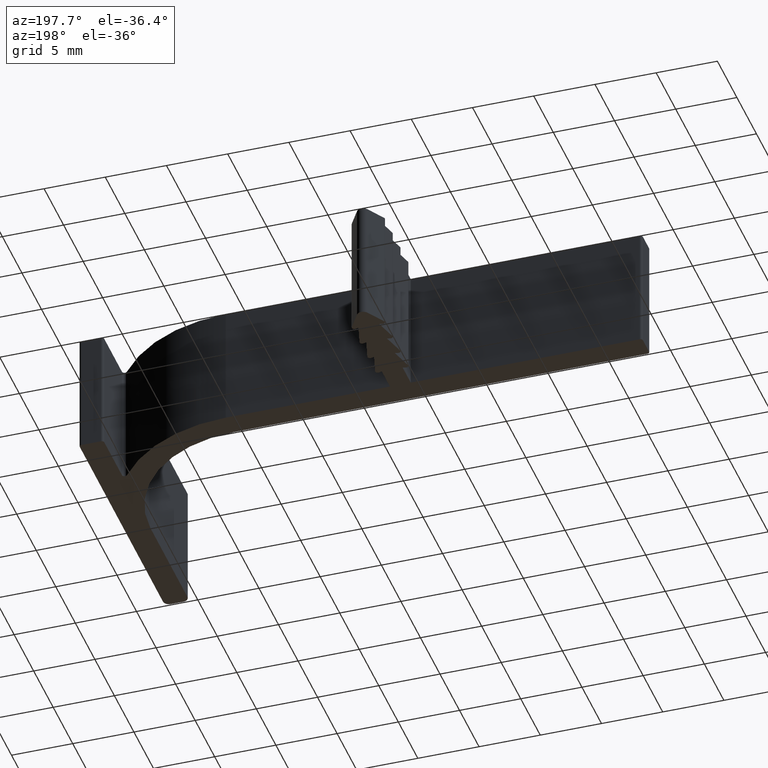
[diagram: clean part render]
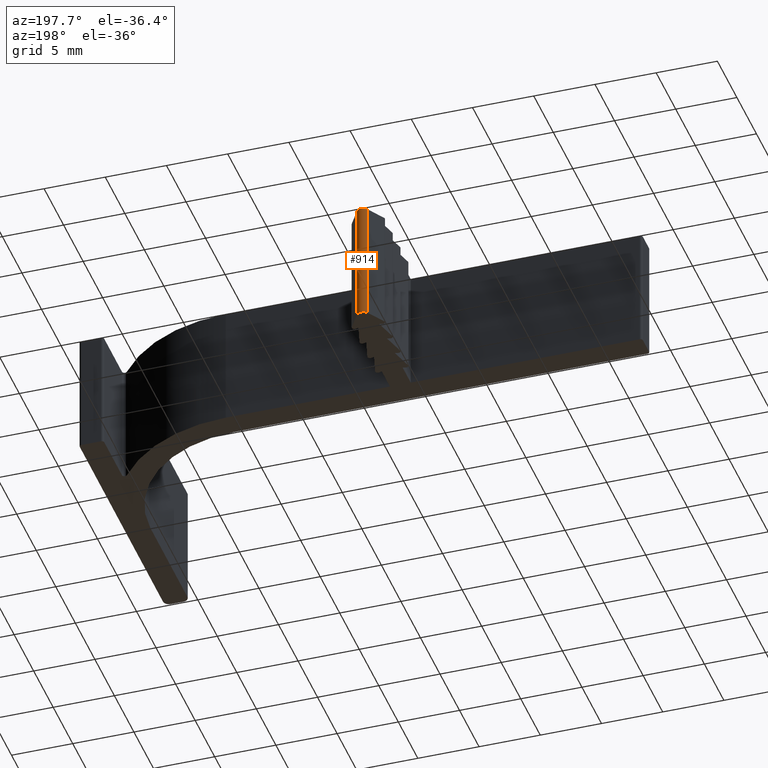
[diagram: same view with one face highlighted and labeled with its STEP entity id]
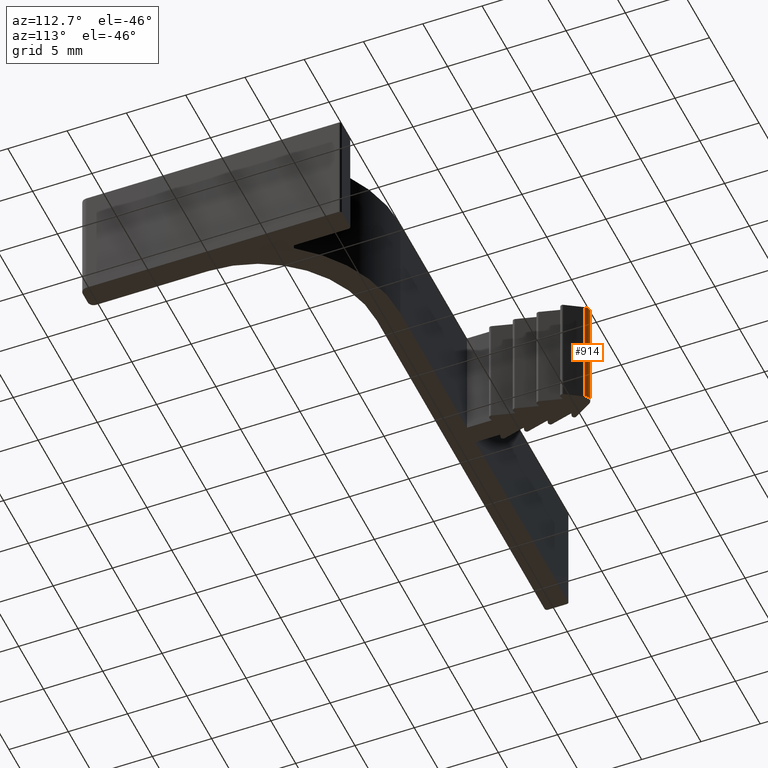
[diagram: same view with one face highlighted and labeled with its STEP entity id]
A machine part, auxiliary view. The second image highlights one B-rep face of the part: STEP entity #914.
A second angle (auxiliary view) of the same face is appended — the face is thin or edge-on in the first view.
In plain terms, the highlighted cylindrical surface (edge-blend (fillet) strip) has radius 0.5 mm, axis along (0, 0, -1).
Its self-contained STEP definition (entity closure, byte-faithful):
#73=FACE_OUTER_BOUND('',#120,.T.);
#120=EDGE_LOOP('',(#795,#796,#797,#798));
#228=LINE('',#1531,#327);
#229=LINE('',#1532,#328);
#327=VECTOR('',#1241,10.);
#328=VECTOR('',#1242,10.);
#347=CIRCLE('',#948,0.5);
#363=CIRCLE('',#967,0.5);
#401=VERTEX_POINT('',#1347);
#402=VERTEX_POINT('',#1349);
#440=VERTEX_POINT('',#1431);
#441=VERTEX_POINT('',#1433);
#493=EDGE_CURVE('',#401,#402,#347,.T.);
#535=EDGE_CURVE('',#440,#441,#363,.T.);
#588=EDGE_CURVE('',#441,#401,#228,.T.);
#589=EDGE_CURVE('',#440,#402,#229,.T.);
#795=ORIENTED_EDGE('',*,*,#493,.F.);
#796=ORIENTED_EDGE('',*,*,#588,.F.);
#797=ORIENTED_EDGE('',*,*,#535,.F.);
#798=ORIENTED_EDGE('',*,*,#589,.T.);
#881=CYLINDRICAL_SURFACE('',#999,0.5);
#914=ADVANCED_FACE('',(#73),#881,.T.);
#948=AXIS2_PLACEMENT_3D('',#1350,#1067,#1068);
#967=AXIS2_PLACEMENT_3D('',#1434,#1131,#1132);
#999=AXIS2_PLACEMENT_3D('',#1530,#1239,#1240);
#1067=DIRECTION('center_axis',(0.,0.,-1.));
#1068=DIRECTION('ref_axis',(-0.852246217309953,-0.523140884543425,0.));
#1131=DIRECTION('center_axis',(0.,0.,1.));
#1132=DIRECTION('ref_axis',(-0.852246217309953,-0.523140884543425,0.));
#1239=DIRECTION('center_axis',(0.,0.,-1.));
#1240=DIRECTION('ref_axis',(-0.852246217309953,-0.523140884543425,0.));
#1241=DIRECTION('',(0.,0.,-1.));
#1242=DIRECTION('',(0.,0.,-1.));
#1347=CARTESIAN_POINT('',(-3.67612310865498,15.7615704422717,-5.));
#1349=CARTESIAN_POINT('',(-2.82387689134502,15.7615704422717,-5.));
#1350=CARTESIAN_POINT('Origin',(-3.25,15.5,-5.));
#1431=CARTESIAN_POINT('',(-2.82387689134502,15.7615704422717,5.));
#1433=CARTESIAN_POINT('',(-3.67612310865498,15.7615704422717,5.));
#1434=CARTESIAN_POINT('Origin',(-3.25,15.5,5.));
#1530=CARTESIAN_POINT('Origin',(-3.25,15.5,5.));
#1531=CARTESIAN_POINT('',(-3.67612310865498,15.7615704422717,5.));
#1532=CARTESIAN_POINT('',(-2.82387689134502,15.7615704422717,5.));